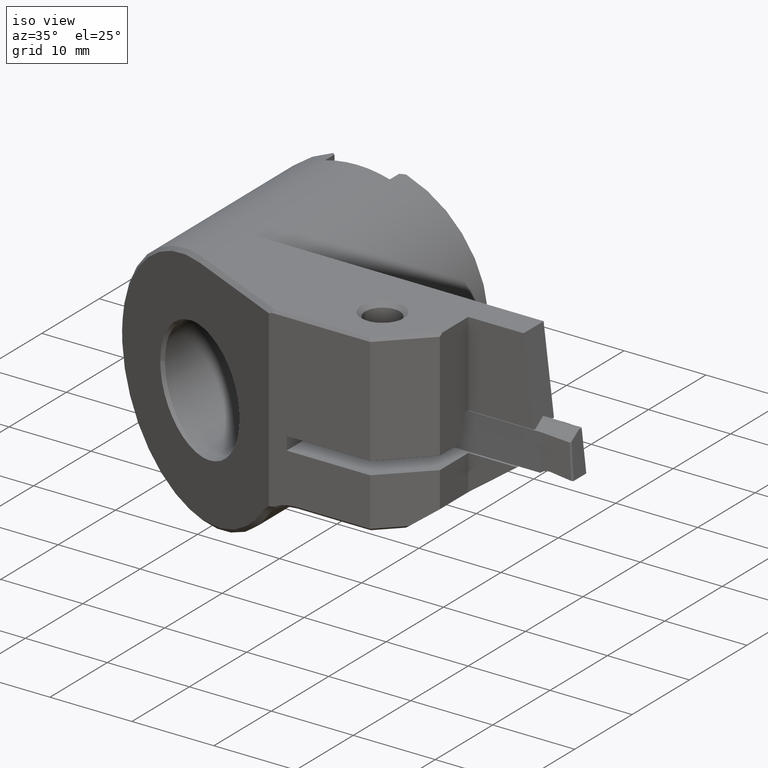
[diagram: clean part render]
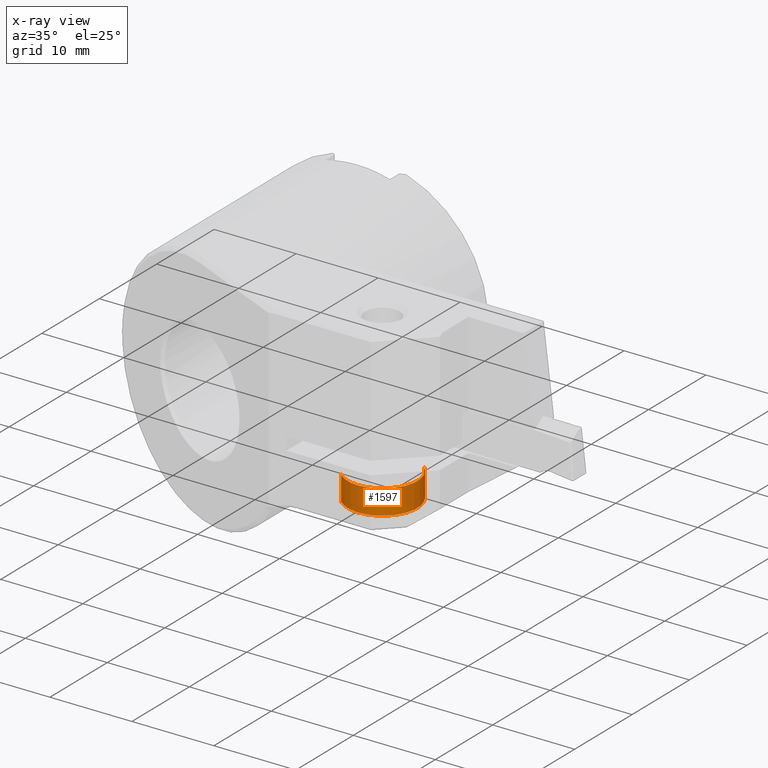
[diagram: x-ray — body ghosted, one internal face saturated and labeled with its STEP entity id]
A machine part, iso view, then the same camera in x-ray: the body is ghosted and one INTERNAL B-rep face — a face not visible from any outside direction — is saturated and labeled: STEP entity #1597.
In plain terms, the highlighted cylindrical surface (partial cylindrical patch) has radius 4.25 mm, axis along (-0, -0, -1).
Its self-contained STEP definition (entity closure, byte-faithful):
#937=VERTEX_POINT('NONE',#2487);
#1037=VERTEX_POINT('NONE',#2597);
#1351=VERTEX_POINT('NONE',#2938);
#1423=EDGE_CURVE('NONE',#1819,#937,#3018,.T.);
#1597=ADVANCED_FACE('NONE',(#3210),#3211,.T.);
#1751=EDGE_CURVE('NONE',#1351,#1819,#3377,.T.);
#1773=EDGE_CURVE('NONE',#1351,#1037,#3401,.T.);
#1819=VERTEX_POINT('NONE',#3454);
#2255=EDGE_CURVE('NONE',#937,#1037,#3938,.T.);
#2487=CARTESIAN_POINT('',(19.1783621417418,-32.3781849846798,-6.0));
#2597=CARTESIAN_POINT('',(24.8216378582582,-26.0218150153202,-6.0));
#2938=CARTESIAN_POINT('',(24.8216378582582,-26.0218150153202,-3.0));
#3018=LINE('',#5453,#5454);
#3210=FACE_OUTER_BOUND('',#5804,.T.);
#3211=CYLINDRICAL_SURFACE('',#5805,4.25);
#3377=CIRCLE('',#6081,4.25);
#3401=LINE('',#6116,#6117);
#3454=CARTESIAN_POINT('',(19.1783621417418,-32.3781849846798,-3.0));
#3938=CIRCLE('',#7042,4.25);
#5453=CARTESIAN_POINT('',(19.1783621417418,-32.3781849846798,-29.0792492179353));
#5454=VECTOR('',#7888,1000.0);
#5804=EDGE_LOOP('',(#8128,#8129,#8130,#8131));
#5805=AXIS2_PLACEMENT_3D('',#8132,#8133,#8134);
#6081=AXIS2_PLACEMENT_3D('',#8280,#8281,#8282);
#6116=CARTESIAN_POINT('',(24.8216378582582,-26.0218150153202,-29.0792492179353));
#6117=VECTOR('',#8304,1000.0);
#7042=AXIS2_PLACEMENT_3D('',#8915,#8916,#8917);
#7888=DIRECTION('',(-1.39720708667698E-016,-9.98786109373211E-032,-1.0));
#8128=ORIENTED_EDGE('',*,*,#1773,.F.);
#8129=ORIENTED_EDGE('',*,*,#1751,.T.);
#8130=ORIENTED_EDGE('',*,*,#1423,.T.);
#8131=ORIENTED_EDGE('',*,*,#2255,.T.);
#8132=CARTESIAN_POINT('',(22.0,-29.2,-29.0792492179353));
#8133=DIRECTION('',(-1.39720708667698E-016,-9.82664103389496E-032,-1.0));
#8134=DIRECTION('',(-0.663914790178406,-0.747808231689357,9.27626449786927E-017));
#8280=CARTESIAN_POINT('',(22.0,-29.2,-3.0));
#8281=DIRECTION('',(-1.39720708667698E-016,-1.09184900376611E-031,-1.0));
#8282=DIRECTION('',(-0.663914790178406,-0.747808231689357,9.27626449786927E-017));
#8304=DIRECTION('',(-1.39720708667698E-016,-9.98786109373211E-032,-1.0));
#8915=CARTESIAN_POINT('',(22.0,-29.2,-6.0));
#8916=DIRECTION('',(1.39720708667698E-016,9.82664103389496E-032,1.0));
#8917=DIRECTION('',(0.663914790178406,0.747808231689357,-9.27626449786927E-017));